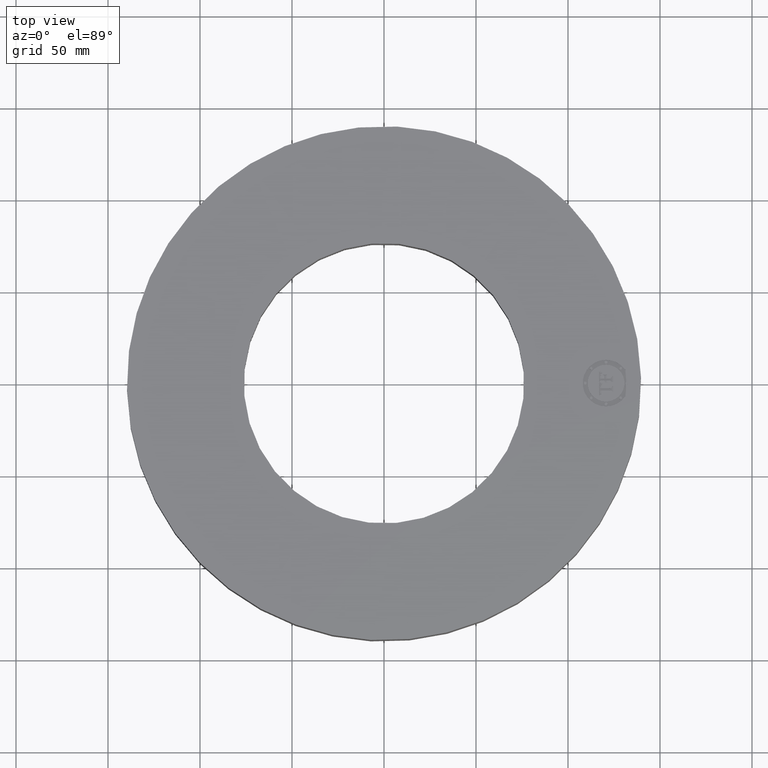
[diagram: clean part render]
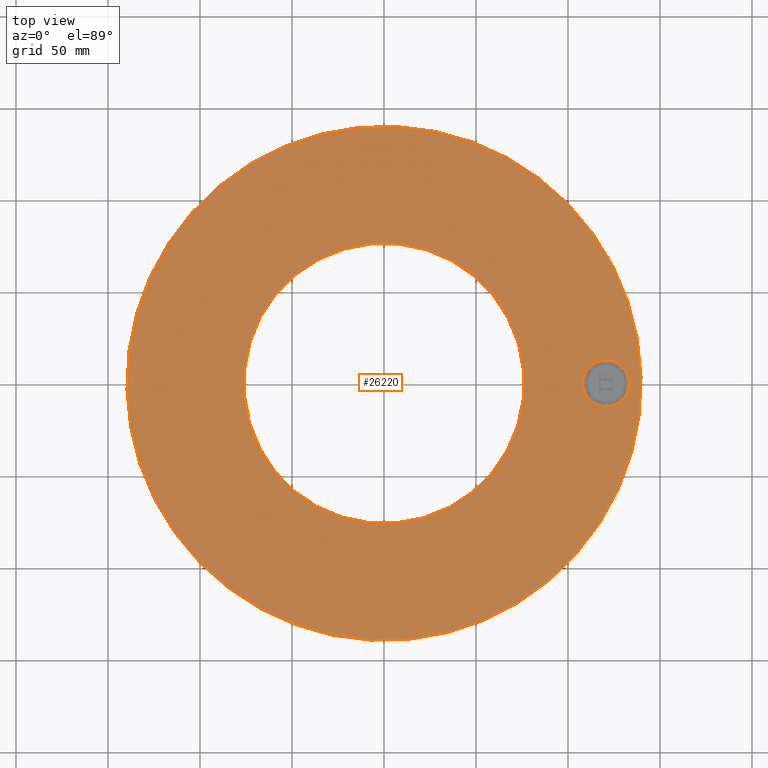
[diagram: same view with one face highlighted and labeled with its STEP entity id]
A machine part, top view. The second image highlights one B-rep face of the part: STEP entity #26220.
In plain terms, the highlighted planar face has unit normal (0, 0, -1).
Its self-contained STEP definition (entity closure, byte-faithful):
#3467=AXIS2_PLACEMENT_3D('Circle Axis2P3D',#3465,#3466,$) ;
#3486=AXIS2_PLACEMENT_3D('Circle Axis2P3D',#3484,#3485,$) ;
#4586=AXIS2_PLACEMENT_3D('Circle Axis2P3D',#4584,#4585,$) ;
#4612=AXIS2_PLACEMENT_3D('Circle Axis2P3D',#4610,#4611,$) ;
#26192=AXIS2_PLACEMENT_3D('Plane Axis2P3D',#26189,#26190,#26191) ;
#26204=AXIS2_PLACEMENT_3D('Circle Axis2P3D',#26202,#26203,$) ;
#26213=AXIS2_PLACEMENT_3D('Circle Axis2P3D',#26211,#26212,$) ;
#3462=CARTESIAN_POINT('Vertex',(-2.63684046233,-4.82670409042,1.75000000001)) ;
#3465=CARTESIAN_POINT('Axis2P3D Location',(0.,0.,1.75000000001)) ;
#3469=CARTESIAN_POINT('Vertex',(2.63684046233,4.82670409042,1.75000000001)) ;
#3484=CARTESIAN_POINT('Axis2P3D Location',(0.,0.,1.75000000001)) ;
#4584=CARTESIAN_POINT('Axis2P3D Location',(0.,0.,1.75000000001)) ;
#4588=CARTESIAN_POINT('Vertex',(1.43827661582,2.63274768568,1.75000000001)) ;
#4590=CARTESIAN_POINT('Vertex',(-1.43827661582,-2.63274768568,1.75000000001)) ;
#4610=CARTESIAN_POINT('Axis2P3D Location',(0.,0.,1.75000000001)) ;
#26189=CARTESIAN_POINT('Axis2P3D Location',(0.,3.00000000001,1.75000000001)) ;
#26202=CARTESIAN_POINT('Axis2P3D Location',(4.75000000002,0.,1.75000000001)) ;
#26206=CARTESIAN_POINT('Vertex',(4.75000000002,-0.499999995002,1.75000000001)) ;
#26208=CARTESIAN_POINT('Vertex',(4.75000000002,0.499999995002,1.75000000001)) ;
#26211=CARTESIAN_POINT('Axis2P3D Location',(4.75000000002,0.,1.75000000001)) ;
#3466=DIRECTION('Axis2P3D Direction',(0.,0.,-0.0393700787402)) ;
#3485=DIRECTION('Axis2P3D Direction',(0.,0.,-0.0393700787402)) ;
#4585=DIRECTION('Axis2P3D Direction',(0.,0.,-0.0393700787402)) ;
#4611=DIRECTION('Axis2P3D Direction',(0.,0.,-0.0393700787402)) ;
#26190=DIRECTION('Axis2P3D Direction',(0.,0.,-0.0393700787402)) ;
#26191=DIRECTION('Axis2P3D XDirection',(0.0393700787402,0.,0.)) ;
#26203=DIRECTION('Axis2P3D Direction',(0.,0.,-0.0393700787402)) ;
#26212=DIRECTION('Axis2P3D Direction',(0.,0.,-0.0393700787402)) ;
#26195=ORIENTED_EDGE('',*,*,#3488,.F.) ;
#26196=ORIENTED_EDGE('',*,*,#3471,.F.) ;
#26199=ORIENTED_EDGE('',*,*,#4614,.T.) ;
#26200=ORIENTED_EDGE('',*,*,#4592,.T.) ;
#26217=ORIENTED_EDGE('',*,*,#26210,.F.) ;
#26218=ORIENTED_EDGE('',*,*,#26215,.F.) ;
#26201=FACE_BOUND('',#26198,.T.) ;
#26219=FACE_BOUND('',#26216,.T.) ;
#26220=ADVANCED_FACE('PartBody',(#26197,#26201,#26219),#26193,.F.) ;
#3468=CIRCLE('generated circle',#3467,5.50000000002) ;
#3487=CIRCLE('generated circle',#3486,5.50000000002) ;
#4587=CIRCLE('generated circle',#4586,3.00000000001) ;
#4613=CIRCLE('generated circle',#4612,3.00000000001) ;
#26205=CIRCLE('generated circle',#26204,0.499999995002) ;
#26214=CIRCLE('generated circle',#26213,0.499999995002) ;
#3471=EDGE_CURVE('',#3463,#3470,#3468,.T.) ;
#3488=EDGE_CURVE('',#3470,#3463,#3487,.T.) ;
#4592=EDGE_CURVE('',#4589,#4591,#4587,.T.) ;
#4614=EDGE_CURVE('',#4591,#4589,#4613,.T.) ;
#26210=EDGE_CURVE('',#26207,#26209,#26205,.F.) ;
#26215=EDGE_CURVE('',#26209,#26207,#26214,.F.) ;
#26194=EDGE_LOOP('',(#26195,#26196)) ;
#26198=EDGE_LOOP('',(#26199,#26200)) ;
#26216=EDGE_LOOP('',(#26217,#26218)) ;
#26197=FACE_OUTER_BOUND('',#26194,.T.) ;
#26193=PLANE('',#26192) ;
#3463=VERTEX_POINT('',#3462) ;
#3470=VERTEX_POINT('',#3469) ;
#4589=VERTEX_POINT('',#4588) ;
#4591=VERTEX_POINT('',#4590) ;
#26207=VERTEX_POINT('',#26206) ;
#26209=VERTEX_POINT('',#26208) ;